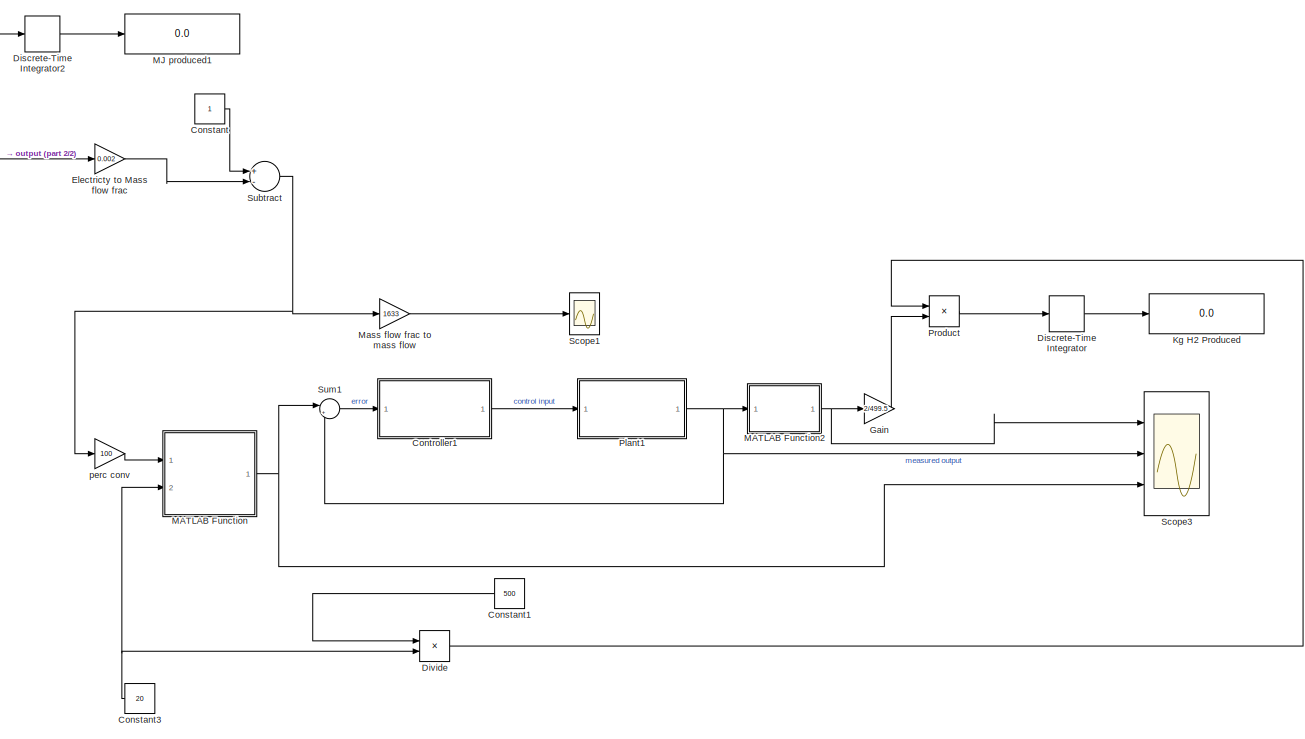
[diagram: root canvas - part 1/2, right side, full height]
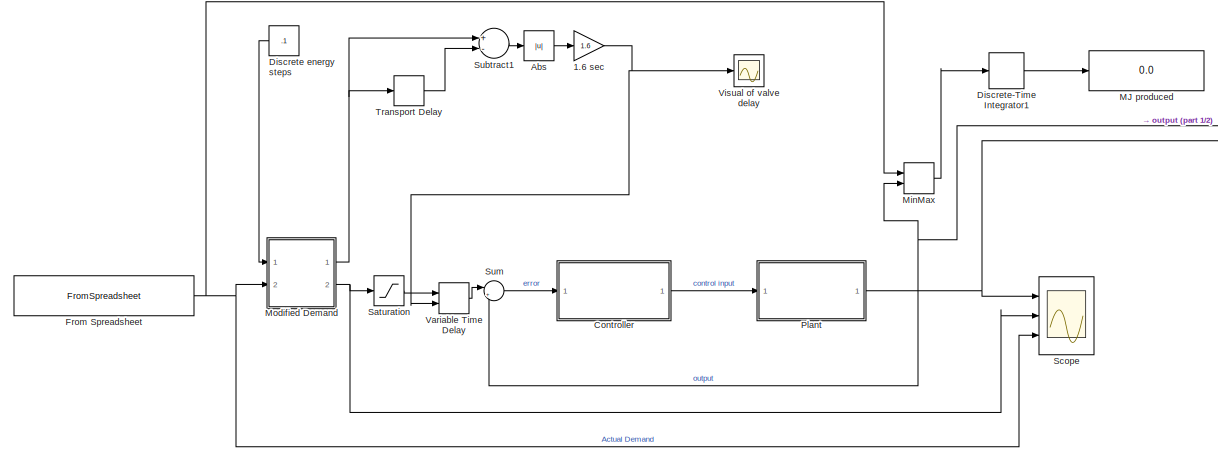
[diagram: root canvas - part 2/2, middle left region]
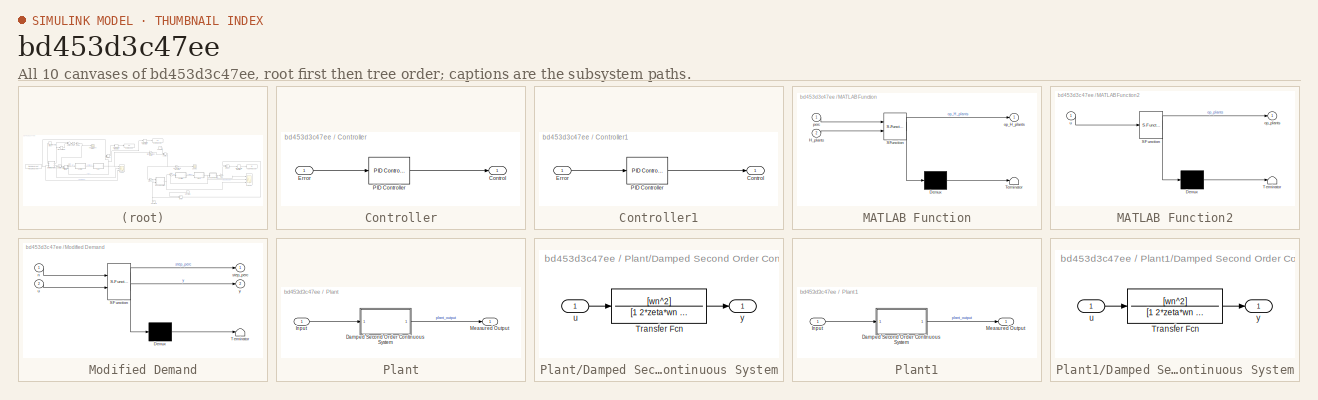
[diagram: thumbnail index - all 10 canvases of the model, root first then tree order]
MODEL slx_bd453d3c47ee
KIND model
CONFIG AbsTol = auto
CONFIG EnableMultiTasking = on
CONFIG FixedStep = auto
CONFIG MaxStep = 0.01
CONFIG MinStep = auto
CONFIG RelTol = 1e-4
CONFIG SampleTimeConstraint = Unconstrained
CONFIG Solver = VariableStepAuto
CONFIG SolverName = VariableStepAuto
CONFIG StartTime = 0.0
CONFIG StopTime = 86400
BLOCK [Gain] 1.6 sec
  Gain = 1.6
  OutDataTypeStr = Inherit: Inherit via internal rule
  ParamDataTypeStr = Inherit: Inherit via internal rule
  SaturateOnIntegerOverflow = off
BLOCK [Abs] Abs
  SaturateOnIntegerOverflow = off
  ZeroCross = off
BLOCK [Constant] Constant
BLOCK [Constant] Constant1
  Value = 500
BLOCK [Constant] Constant3
  Value = 20
BLOCK [SubSystem] Controller
  Ports = [1, 1]
  RequestExecContextInheritance = off
  Variant = off
BLOCK [Outport] Controller/Control
  IconDisplay = Port number
BLOCK [Inport] Controller/Error
  IconDisplay = Port number
BLOCK [Reference] Controller/PID Controller  REF=simulink/Continuous/PID Controller
  Ports = [1, 1]
  SourceBlock = simulink/Continuous/PID Controller
  SourceType = PID 1dof
BLOCK [SubSystem] Controller1
  Ports = [1, 1]
  RequestExecContextInheritance = off
  Variant = off
BLOCK [Outport] Controller1/Control
  IconDisplay = Port number
BLOCK [Inport] Controller1/Error
  IconDisplay = Port number
BLOCK [Reference] Controller1/PID Controller  REF=simulink/Continuous/PID Controller
  Ports = [1, 1]
  SourceBlock = simulink/Continuous/PID Controller
  SourceType = PID 1dof
BLOCK [Constant] Discrete energy steps
  Value = .1
BLOCK [DiscreteIntegrator] Discrete-Time Integrator
  ICPrevOutput = DiscIntNeverNeededParam
  ICPrevScaledInput = DiscIntNeverNeededParam
  InitialConditionSetting = State (most efficient)
  Ports = [1, 1]
  SampleTime = -1
BLOCK [DiscreteIntegrator] Discrete-Time Integrator1
  ICPrevOutput = DiscIntNeverNeededParam
  ICPrevScaledInput = DiscIntNeverNeededParam
  InitialConditionSetting = State (most efficient)
  Ports = [1, 1]
  SampleTime = -1
BLOCK [DiscreteIntegrator] Discrete-Time Integrator2
  ICPrevOutput = DiscIntNeverNeededParam
  ICPrevScaledInput = DiscIntNeverNeededParam
  InitialConditionSetting = State (most efficient)
  Ports = [1, 1]
  SampleTime = -1
BLOCK [Product] Divide
  InputSameDT = off
  Inputs = */
  OutDataTypeStr = Inherit: Inherit via internal rule
  Ports = [2, 1]
  RndMeth = Floor
  SaturateOnIntegerOverflow = off
BLOCK [Gain] Electricty to Mass flow frac 
  Gain = 0.002
  OutDataTypeStr = Inherit: Inherit via internal rule
  ParamDataTypeStr = Inherit: Inherit via internal rule
  SaturateOnIntegerOverflow = off
BLOCK [FromSpreadsheet] From Spreadsheet
  FileName = avgday.xlsx
  Ports = [0, 1]
BLOCK [Gain] Gain
  Gain = 2/499.5
  OutDataTypeStr = Inherit: Inherit via internal rule
  ParamDataTypeStr = Inherit: Inherit via internal rule
  SaturateOnIntegerOverflow = off
BLOCK [Display] Kg H2 Produced
  Decimation = 1
  Format = long
  Ports = [1]
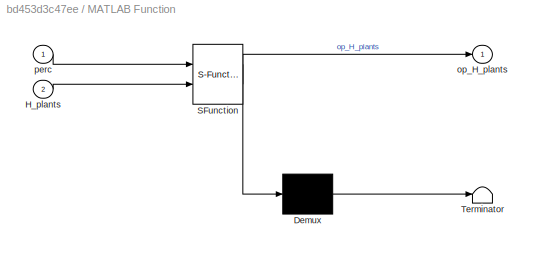
BLOCK [SubSystem] MATLAB Function
  ErrorFcn = Stateflow.Translate.translate
  PermitHierarchicalResolution = ExplicitOnly
  Ports = [2, 1]
  RequestExecContextInheritance = off
  SFBlockType = MATLAB Function
  TreatAsAtomicUnit = on
  Variant = off
BLOCK [Demux] MATLAB Function/ Demux 
  Outputs = 1
  Ports = [1, 1]
BLOCK [S-Function] MATLAB Function/ SFunction 
  EnableBusSupport = on
  FunctionName = sf_sfun
  PortCounts = [2 2]
  Ports = [2, 2]
  SFcnIsStateOwnerBlock = off
  SFunctionDeploymentMode = off
  Tag = Stateflow S-Function Prod_mod 2
BLOCK [Terminator] MATLAB Function/ Terminator 
BLOCK [Inport] MATLAB Function/H_plants
  IconDisplay = Port number
  Port = 2
BLOCK [Outport] MATLAB Function/op_H_plants
  IconDisplay = Port number
BLOCK [Inport] MATLAB Function/perc
  IconDisplay = Port number
BLOCK [SubSystem] MATLAB Function2
  ErrorFcn = Stateflow.Translate.translate
  PermitHierarchicalResolution = ExplicitOnly
  Ports = [1, 1]
  RequestExecContextInheritance = off
  SFBlockType = MATLAB Function
  TreatAsAtomicUnit = on
  Variant = off
BLOCK [Demux] MATLAB Function2/ Demux 
  Outputs = 1
  Ports = [1, 1]
BLOCK [S-Function] MATLAB Function2/ SFunction 
  EnableBusSupport = on
  FunctionName = sf_sfun
  PortCounts = [1 2]
  Ports = [1, 2]
  SFcnIsStateOwnerBlock = off
  SFunctionDeploymentMode = off
  Tag = Stateflow S-Function Prod_mod 3
BLOCK [Terminator] MATLAB Function2/ Terminator 
BLOCK [Outport] MATLAB Function2/op_plants
  IconDisplay = Port number
BLOCK [Inport] MATLAB Function2/u
  IconDisplay = Port number
BLOCK [Display] MJ produced
  Decimation = 1
  Format = long
  Ports = [1]
BLOCK [Display] MJ produced1
  Decimation = 1
  Format = long
  Ports = [1]
BLOCK [Gain] Mass flow frac to mass flow 
  Gain = 1633
  OutDataTypeStr = Inherit: Inherit via internal rule
  ParamDataTypeStr = Inherit: Inherit via internal rule
  SaturateOnIntegerOverflow = off
BLOCK [MinMax] MinMax
  InputSameDT = off
  Inputs = 2
  Ports = [2, 1]
  SaturateOnIntegerOverflow = off
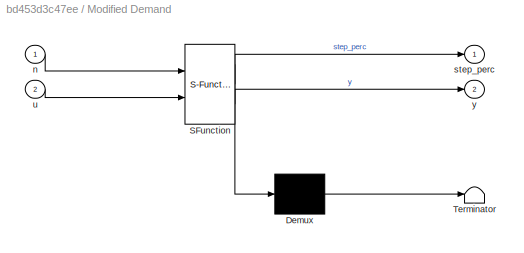
BLOCK [SubSystem] Modified Demand
  ErrorFcn = Stateflow.Translate.translate
  PermitHierarchicalResolution = ExplicitOnly
  Ports = [2, 2]
  RequestExecContextInheritance = off
  SFBlockType = MATLAB Function
  TreatAsAtomicUnit = on
  Variant = off
BLOCK [Demux] Modified Demand/ Demux 
  Outputs = 1
  Ports = [1, 1]
BLOCK [S-Function] Modified Demand/ SFunction 
  EnableBusSupport = on
  FunctionName = sf_sfun
  PortCounts = [2 3]
  Ports = [2, 3]
  SFcnIsStateOwnerBlock = off
  SFunctionDeploymentMode = off
  Tag = Stateflow S-Function Prod_mod 1
BLOCK [Terminator] Modified Demand/ Terminator 
BLOCK [Inport] Modified Demand/n
  IconDisplay = Port number
BLOCK [Outport] Modified Demand/step_perc
  IconDisplay = Port number
BLOCK [Inport] Modified Demand/u
  IconDisplay = Port number
  Port = 2
BLOCK [Outport] Modified Demand/y
  IconDisplay = Port number
  Port = 2
BLOCK [SubSystem] Plant
  Ports = [1, 1]
  RequestExecContextInheritance = off
  Variant = off
BLOCK [SubSystem] Plant/Damped Second Order Continuous System
  Ports = [1, 1]
  RequestExecContextInheritance = off
  Variant = off
BLOCK [TransferFcn] Plant/Damped Second Order Continuous System/Transfer Fcn
  Denominator = [1 2*zeta*wn wn^2]
  Numerator = [wn^2]
BLOCK [Inport] Plant/Damped Second Order Continuous System/u
  IconDisplay = Port number
BLOCK [Outport] Plant/Damped Second Order Continuous System/y
  IconDisplay = Port number
BLOCK [Inport] Plant/Input
  IconDisplay = Port number
BLOCK [Outport] Plant/Measured Output
  IconDisplay = Port number
BLOCK [SubSystem] Plant1
  Ports = [1, 1]
  RequestExecContextInheritance = off
  Variant = off
BLOCK [SubSystem] Plant1/Damped Second Order Continuous System
  Ports = [1, 1]
  RequestExecContextInheritance = off
  Variant = off
BLOCK [TransferFcn] Plant1/Damped Second Order Continuous System/Transfer Fcn
  Denominator = [1 2*zeta*wn wn^2]
  Numerator = [wn^2]
BLOCK [Inport] Plant1/Damped Second Order Continuous System/u
  IconDisplay = Port number
BLOCK [Outport] Plant1/Damped Second Order Continuous System/y
  IconDisplay = Port number
BLOCK [Inport] Plant1/Input
  IconDisplay = Port number
BLOCK [Outport] Plant1/Measured Output
  IconDisplay = Port number
BLOCK [Product] Product
  InputSameDT = off
  OutDataTypeStr = Inherit: Inherit via internal rule
  Ports = [2, 1]
  RndMeth = Floor
  SaturateOnIntegerOverflow = off
BLOCK [Saturate] Saturation
  InputPortMap = u0
  LowerLimit = 0
  Ports = [1, 1]
  UpperLimit = 500
BLOCK [Scope] Scope
  NumInputPorts = 3
  Ports = [3]
  ScopeSpecificationString = Simulink.scopes.TimeScopeBlockCfg('CurrentConfiguration', extmgr.ConfigurationSet(extmgr.Configuration('Core','General UI',true,'FigureColor',[0 0 0]),extmgr.Configuration('Core','Source UI',true),extmgr.Configuration('Sources','WiredSimulink',true),extmgr.Configuration('Visuals','Time Domain',true,'SerializedDisplays',{struct('MinYLimReal','-61.1875','MaxYLimReal','550.6875','YLabelReal','','MinY...<+1460ch>
BLOCK [Scope] Scope1
  NumInputPorts = 1
  Ports = [1]
  ScopeSpecificationString = Simulink.scopes.TimeScopeBlockCfg('CurrentConfiguration', extmgr.ConfigurationSet(extmgr.Configuration('Core','General UI',true),extmgr.Configuration('Core','Source UI',true),extmgr.Configuration('Sources','WiredSimulink',true,'DataLoggingVariableName','ScopeData1'),extmgr.Configuration('Visuals','Time Domain',true,'SerializedDisplays',{struct('MinYLimReal','324.41351','MaxYLimReal','1778.3985','Y...<+1401ch>
BLOCK [Scope] Scope3
  NumInputPorts = 3
  Ports = [3]
  ScopeSpecificationString = Simulink.scopes.TimeScopeBlockCfg('CurrentConfiguration', extmgr.ConfigurationSet(extmgr.Configuration('Core','General UI',true),extmgr.Configuration('Core','Source UI',true),extmgr.Configuration('Sources','WiredSimulink',true,'DataLoggingVariableName','ScopeData3'),extmgr.Configuration('Visuals','Time Domain',true,'SerializedDisplays',{struct('MinYLimReal','-12.5','MaxYLimReal','112.5','YLabelRea...<+1470ch>
BLOCK [Sum] Subtract
  InputSameDT = off
  Inputs = +-
  OutDataTypeStr = Inherit: Inherit via internal rule
  Ports = [2, 1]
  SaturateOnIntegerOverflow = off
BLOCK [Sum] Subtract1
  InputSameDT = off
  Inputs = +-
  OutDataTypeStr = Inherit: Inherit via internal rule
  Ports = [2, 1]
  SaturateOnIntegerOverflow = off
BLOCK [Sum] Sum
  IconShape = round
  InputSameDT = off
  Inputs = |+-
  OutDataTypeStr = Inherit: Inherit via internal rule
  Ports = [2, 1]
  SaturateOnIntegerOverflow = off
BLOCK [Sum] Sum1
  IconShape = round
  InputSameDT = off
  Inputs = |+-
  OutDataTypeStr = Inherit: Inherit via internal rule
  Ports = [2, 1]
  SaturateOnIntegerOverflow = off
BLOCK [TransportDelay] Transport Delay
  Ports = [1, 1]
BLOCK [VariableTransportDelay] Variable Time Delay
  MaximumDelay = 10
  Ports = [2, 1]
  ZeroDelay = on
BLOCK [Scope] Visual of valve delay
  NumInputPorts = 1
  Ports = [1]
  ScopeSpecificationString = Simulink.scopes.TimeScopeBlockCfg('CurrentConfiguration', extmgr.ConfigurationSet(extmgr.Configuration('Core','General UI',true),extmgr.Configuration('Core','Source UI',true),extmgr.Configuration('Sources','WiredSimulink',true,'DataLoggingVariableName','ScopeData2'),extmgr.Configuration('Visuals','Time Domain',true,'SerializedDisplays',{struct('MinYLimReal','-0.008','MaxYLimReal','0.072','YLabelRe...<+1383ch>
BLOCK [Gain] perc conv
  Gain = 100
  OutDataTypeStr = Inherit: Inherit via internal rule
  ParamDataTypeStr = Inherit: Inherit via internal rule
  SaturateOnIntegerOverflow = off
NET 1.6 sec:1 -> Variable Time Delay:2, Visual of valve delay:1
LINE Abs:1 -> 1.6 sec:1
LINE Constant1:1 -> Divide:1
NET Constant3:1 -> Divide:2, MATLAB Function:2
LINE Constant:1 -> Subtract:1
LINE Controller/Error:1 -> Controller/PID Controller:1
LINE Controller/PID Controller:1 -> Controller/Control:1
LINE Controller1/Error:1 -> Controller1/PID Controller:1
LINE Controller1/PID Controller:1 -> Controller1/Control:1
LINE Controller1:1 -> Plant1:1
LINE Controller:1 -> Plant:1
LINE Discrete energy steps:1 -> Modified Demand:1
LINE Discrete-Time Integrator1:1 -> MJ produced:1
LINE Discrete-Time Integrator2:1 -> MJ produced1:1
LINE Discrete-Time Integrator:1 -> Kg H2 Produced:1
LINE Divide:1 -> Product:1
LINE Electricty to Mass flow frac :1 -> Subtract:2
NET From Spreadsheet:1 -> MinMax:1, Modified Demand:2, Scope:3
LINE Gain:1 -> Product:2
NET MATLAB Function2:1 -> Gain:1, Scope3:1
NET MATLAB Function:1 -> Scope3:3, Sum1:1
LINE Mass flow frac to mass flow :1 -> Scope1:1
LINE MinMax:1 -> Discrete-Time Integrator1:1
NET Modified Demand:1 -> Subtract1:1, Transport Delay:1
NET Modified Demand:2 -> Saturation:1, Scope:2
LINE Plant/Damped Second Order Continuous System/Transfer Fcn:1 -> Plant/Damped Second Order Continuous System/y:1
LINE Plant/Damped Second Order Continuous System/u:1 -> Plant/Damped Second Order Continuous System/Transfer Fcn:1
LINE Plant/Damped Second Order Continuous System:1 -> Plant/Measured Output:1
LINE Plant/Input:1 -> Plant/Damped Second Order Continuous System:1
LINE Plant1/Damped Second Order Continuous System/Transfer Fcn:1 -> Plant1/Damped Second Order Continuous System/y:1
LINE Plant1/Damped Second Order Continuous System/u:1 -> Plant1/Damped Second Order Continuous System/Transfer Fcn:1
LINE Plant1/Damped Second Order Continuous System:1 -> Plant1/Measured Output:1
LINE Plant1/Input:1 -> Plant1/Damped Second Order Continuous System:1
NET Plant1:1 -> MATLAB Function2:1, Scope3:2, Sum1:2
NET Plant:1 -> Discrete-Time Integrator2:1, Electricty to Mass flow frac :1, MinMax:2, Scope:1, Sum:2
LINE Product:1 -> Discrete-Time Integrator:1
LINE Saturation:1 -> Variable Time Delay:1
LINE Subtract1:1 -> Abs:1
NET Subtract:1 -> Mass flow frac to mass flow :1, perc conv:1
LINE Sum1:1 -> Controller1:1
LINE Sum:1 -> Controller:1
LINE Transport Delay:1 -> Subtract1:2
LINE Variable Time Delay:1 -> Sum:1
LINE perc conv:1 -> MATLAB Function:1
note: NET lines group one-source signal fan-out (src -> all destinations, sorted); 1:1 wires keep LINE
CHART Modified Demand states=1 transitions=1
  STATE_LABEL 'eML_blk_kernel()'
  STATE_LABEL 'SCRIPT:\nfunction [step_perc,y] = fcn(n,u)\nN=500*n/100;\nstep_perc=ceil(u/N)/N;\ny = N*ceil(u/N);\n\n'
CHART MATLAB Function states=1 transitions=1
  STATE_LABEL 'eML_blk_kernel()'
  STATE_LABEL 'SCRIPT:\nfunction op_H_plants = fcn(perc,H_plants)\ninterval=100/H_plants;\nop_H_plants=floor(perc/interval);\n\n'
CHART MATLAB Function2 states=1 transitions=1
  STATE_LABEL 'eML_blk_kernel()'
  STATE_LABEL 'SCRIPT:\nfunction op_plants = fcn(u)\nop_plants=floor(u+.001);'
